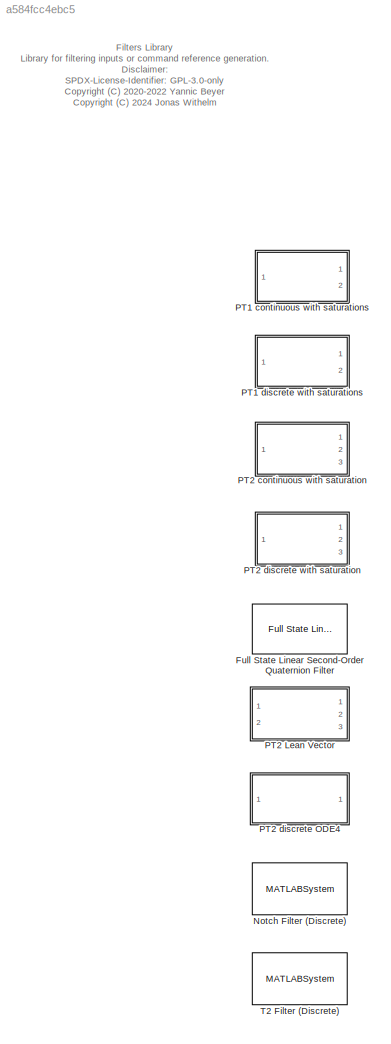
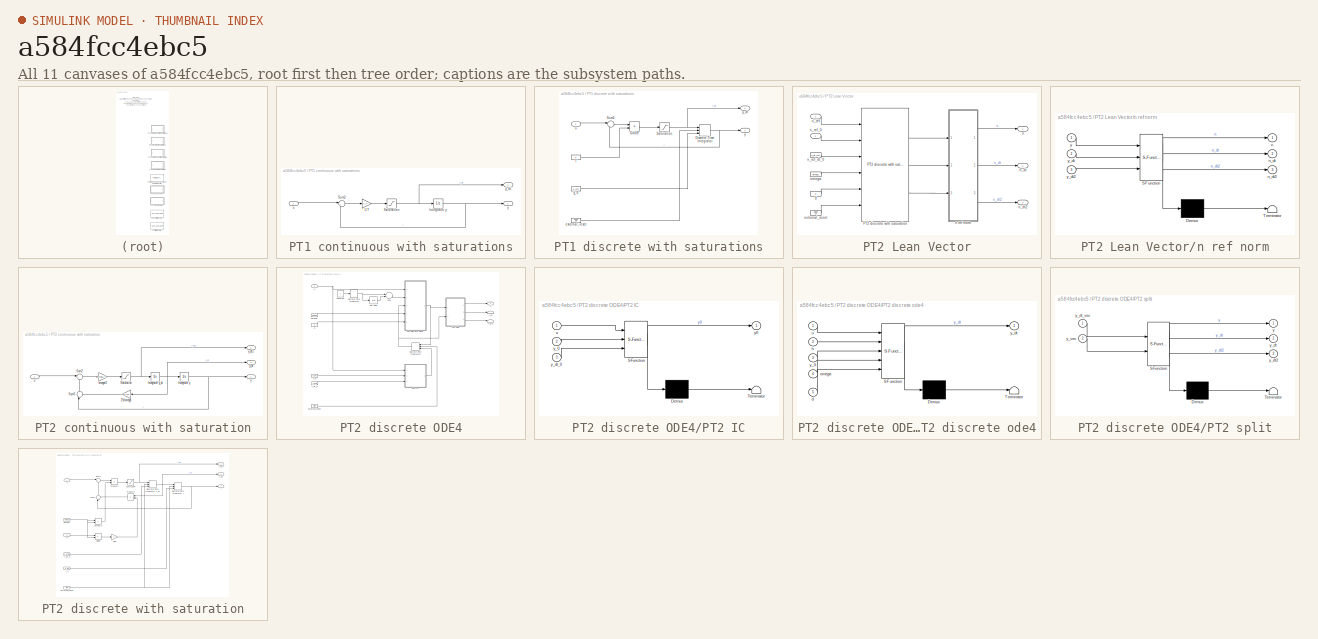
[diagram: thumbnail index - all 11 canvases of the model, root first then tree order]
MODEL slx_a584fcc4ebc5
KIND library
CONFIG AbsTol = auto
CONFIG EnableMultiTasking = off
CONFIG FixedStep = auto
CONFIG MaxStep = auto
CONFIG MinStep = auto
CONFIG RelTol = 1e-3
CONFIG SampleTimeConstraint = Unconstrained
CONFIG Solver = VariableStepAuto
CONFIG SolverName = VariableStepAuto
CONFIG StartTime = 0.0
CONFIG StopTime = 10.0
BLOCK [Reference] Full State Linear Second-Order Quaternion Filter  REF=quatAttitudeController_lib/Full State Linear Second-Order Quaternion Filter
  Ports = [1, 1]
  SourceBlock = quatAttitudeController_lib/Full State Linear Second-Order Quaternion Filter
  SourceProductName = LADAC
BLOCK [MATLABSystem] Notch Filter (Discrete)
  A0_dB = 40
  MaskDisplay = disp('NotchFilter');\nport_label('input',1,'u');\nport_label('output',1,'y');
  MaskType = NotchFilter
  Ports = [1, 1]
  SimulateUsing = Code generation
  System = NotchFilter
  Ts = -1
  omega_0 = 2*pi*80
  omega_c = 2*pi*40
BLOCK [SubSystem] PT1 continuous with saturations
  Ports = [1, 2]
  RequestExecContextInheritance = off
BLOCK [Gain] PT1 continuous with saturations/1//T
  Gain = 1./T
  OutDataTypeStr = Inherit: Inherit via internal rule
  ParamDataTypeStr = Inherit: Inherit via internal rule
  SaturateOnIntegerOverflow = off
BLOCK [Integrator] PT1 continuous with saturations/Integrator y
  InitialCondition = x_init
  LimitOutput = on
  LowerSaturationLimit = x_min
  Ports = [1, 1]
  UpperSaturationLimit = x_max
BLOCK [Saturate] PT1 continuous with saturations/Saturation
  InputPortMap = u0
  LowerLimit = x_dt_min
  Ports = [1, 1]
  UpperLimit = x_dt_max
BLOCK [Sum] PT1 continuous with saturations/Sum2
  IconShape = round
  InputSameDT = off
  Inputs = |+-
  OutDataTypeStr = Inherit: Inherit via internal rule
  Ports = [2, 1]
  SaturateOnIntegerOverflow = off
BLOCK [Inport] PT1 continuous with saturations/u
  IconDisplay = Port number
BLOCK [Outport] PT1 continuous with saturations/y
  IconDisplay = Port number
BLOCK [Outport] PT1 continuous with saturations/y_dt
  IconDisplay = Port number
  Port = 2
BLOCK [SubSystem] PT1 discrete with saturations
  Ports = [1, 2]
  RequestExecContextInheritance = off
BLOCK [DiscreteIntegrator] PT1 discrete with saturations/Discrete-Time Integrator
  ExternalReset = rising
  ICPrevOutput = DiscIntNeverNeededParam
  ICPrevScaledInput = DiscIntNeverNeededParam
  InitialCondition = x_init
  InitialConditionSetting = Auto
  InitialConditionSource = external
  LimitOutput = on
  LowerSaturationLimit = x_min
  Ports = [3, 1]
  SampleTime = -1
  UpperSaturationLimit = x_max
BLOCK [Product] PT1 discrete with saturations/Divide
  InputSameDT = off
  Inputs = */
  OutDataTypeStr = Inherit: Inherit via internal rule
  Ports = [2, 1]
  RndMeth = Floor
  SaturateOnIntegerOverflow = off
BLOCK [Saturate] PT1 discrete with saturations/Saturation
  InputPortMap = u0
  LowerLimit = x_dt_min
  Ports = [1, 1]
  UpperLimit = x_dt_max
BLOCK [Sum] PT1 discrete with saturations/Sum2
  IconShape = round
  InputSameDT = off
  Inputs = |+-
  OutDataTypeStr = Inherit: Inherit via internal rule
  Ports = [2, 1]
  SaturateOnIntegerOverflow = off
BLOCK [Constant] PT1 discrete with saturations/T
  Value = T
BLOCK [Ground] PT1 discrete with saturations/external_reset
BLOCK [Inport] PT1 discrete with saturations/u
  IconDisplay = Port number
BLOCK [Outport] PT1 discrete with saturations/y
  IconDisplay = Port number
BLOCK [Constant] PT1 discrete with saturations/y_0
  Value = x_init
BLOCK [Outport] PT1 discrete with saturations/y_dt
  IconDisplay = Port number
  Port = 2
BLOCK [SubSystem] PT2 Lean Vector
  Ports = [2, 3]
  RequestExecContextInheritance = off
BLOCK [Reference] PT2 Lean Vector/PT2 discrete with saturation  REF=$bdroot/PT2 discrete with saturation
  Ports = [6, 3]
  SourceBlock = $bdroot/PT2 discrete with saturation
  SourceType = PT2 discrete with saturation
BLOCK [Constant] PT2 Lean Vector/d
  Value = d
BLOCK [Ground] PT2 Lean Vector/external_reset
BLOCK [Outport] PT2 Lean Vector/n
  IconDisplay = Port number
  PortDimensions = 3
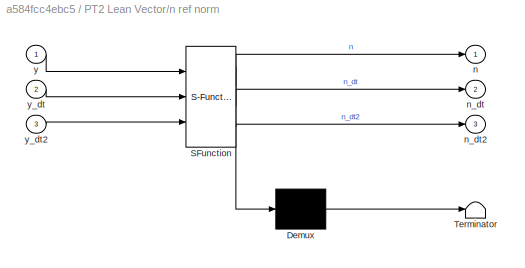
BLOCK [SubSystem] PT2 Lean Vector/n ref norm
  ErrorFcn = Stateflow.Translate.translate
  PermitHierarchicalResolution = ExplicitOnly
  Ports = [3, 3]
  RequestExecContextInheritance = off
  SFBlockType = MATLAB Function
  TreatAsAtomicUnit = on
BLOCK [Demux] PT2 Lean Vector/n ref norm/ Demux 
  Outputs = 1
  Ports = [1, 1]
BLOCK [S-Function] PT2 Lean Vector/n ref norm/ SFunction 
  EnableBusSupport = off
  FunctionName = sf_sfun
  PortCounts = [3 4]
  Ports = [3, 4]
  SFcnIsStateOwnerBlock = off
  SFunctionDeploymentMode = off
  Tag = Stateflow S-Function filters_lib 2
BLOCK [Terminator] PT2 Lean Vector/n ref norm/ Terminator 
BLOCK [Outport] PT2 Lean Vector/n ref norm/n
  IconDisplay = Port number
BLOCK [Outport] PT2 Lean Vector/n ref norm/n_dt
  IconDisplay = Port number
  Port = 2
BLOCK [Outport] PT2 Lean Vector/n ref norm/n_dt2
  IconDisplay = Port number
  Port = 3
BLOCK [Inport] PT2 Lean Vector/n ref norm/y
  IconDisplay = Port number
BLOCK [Inport] PT2 Lean Vector/n ref norm/y_dt
  IconDisplay = Port number
  Port = 2
BLOCK [Inport] PT2 Lean Vector/n ref norm/y_dt2
  IconDisplay = Port number
  Port = 3
BLOCK [Outport] PT2 Lean Vector/n_dt
  IconDisplay = Port number
  Port = 2
  PortDimensions = 3
BLOCK [Outport] PT2 Lean Vector/n_dt2
  IconDisplay = Port number
  Port = 3
  PortDimensions = 3
BLOCK [Inport] PT2 Lean Vector/n_ref
  IconDisplay = Port number
  PortDimensions = 3
BLOCK [Inport] PT2 Lean Vector/n_ref_0
  IconDisplay = Port number
  Port = 2
  PortDimensions = 3
BLOCK [Constant] PT2 Lean Vector/n_ref_dt_0
  Value = x_dt_init
BLOCK [Constant] PT2 Lean Vector/omega
  Value = omega
BLOCK [SubSystem] PT2 continuous with saturation
  Ports = [1, 3]
  RequestExecContextInheritance = off
BLOCK [Gain] PT2 continuous with saturation/2*d//omega
  Gain = 2*d./omega
  OutDataTypeStr = Inherit: Inherit via internal rule
  ParamDataTypeStr = Inherit: Inherit via internal rule
  SaturateOnIntegerOverflow = off
BLOCK [Integrator] PT2 continuous with saturation/Integrator y
  InitialCondition = x_init
  LimitOutput = on
  LowerSaturationLimit = x_min
  Ports = [1, 1]
  UpperSaturationLimit = x_max
BLOCK [Integrator] PT2 continuous with saturation/Integrator y_dt
  InitialCondition = x_dt_init
  LimitOutput = on
  LowerSaturationLimit = x_dt_min
  Ports = [1, 1]
  UpperSaturationLimit = x_dt_max
BLOCK [Saturate] PT2 continuous with saturation/Saturation
  InputPortMap = u0
  LowerLimit = x_dt2_min
  Ports = [1, 1]
  UpperLimit = x_dt2_max
BLOCK [Sum] PT2 continuous with saturation/Sum2
  IconShape = round
  InputSameDT = off
  Inputs = |+-
  OutDataTypeStr = Inherit: Inherit via internal rule
  Ports = [2, 1]
  SaturateOnIntegerOverflow = off
BLOCK [Sum] PT2 continuous with saturation/Sum3
  IconShape = round
  InputSameDT = off
  Inputs = |++
  OutDataTypeStr = Inherit: Inherit via internal rule
  Ports = [2, 1]
  SaturateOnIntegerOverflow = off
BLOCK [Gain] PT2 continuous with saturation/omega^2
  Gain = omega.^2
  OutDataTypeStr = Inherit: Inherit via internal rule
  ParamDataTypeStr = Inherit: Inherit via internal rule
  SaturateOnIntegerOverflow = off
BLOCK [Inport] PT2 continuous with saturation/u
  IconDisplay = Port number
BLOCK [Outport] PT2 continuous with saturation/y
  IconDisplay = Port number
BLOCK [Outport] PT2 continuous with saturation/y_dt
  IconDisplay = Port number
  Port = 2
BLOCK [Outport] PT2 continuous with saturation/y_dt2
  IconDisplay = Port number
  Port = 3
BLOCK [SubSystem] PT2 discrete ODE4
  Ports = [1, 1]
  RequestExecContextInheritance = off
BLOCK [Sum] PT2 discrete ODE4/Add1
  InputSameDT = off
  Inputs = +-
  OutDataTypeStr = Inherit: Inherit via internal rule
  Ports = [2, 1]
  SaturateOnIntegerOverflow = off
BLOCK [Constant] PT2 discrete ODE4/Constant
BLOCK [DiscreteIntegrator] PT2 discrete ODE4/Discrete-Time Integrator
  ICPrevOutput = DiscIntNeverNeededParam
  ICPrevScaledInput = DiscIntNeverNeededParam
  InitialConditionSetting = Auto
  Ports = [1, 1]
  SampleTime = -1
BLOCK [DiscreteIntegrator] PT2 discrete ODE4/Discrete-Time Integrator1
  ExternalReset = rising
  ICPrevOutput = DiscIntNeverNeededParam
  ICPrevScaledInput = DiscIntNeverNeededParam
  InitialConditionSetting = Auto
  InitialConditionSource = external
  Ports = [3, 1]
  SampleTime = -1
BLOCK [SubSystem] PT2 discrete ODE4/PT2 IC
  ErrorFcn = Stateflow.Translate.translate
  PermitHierarchicalResolution = ExplicitOnly
  Ports = [3, 1]
  RequestExecContextInheritance = off
  SFBlockType = MATLAB Function
  TreatAsAtomicUnit = on
BLOCK [Demux] PT2 discrete ODE4/PT2 IC/ Demux 
  Outputs = 1
  Ports = [1, 1]
BLOCK [S-Function] PT2 discrete ODE4/PT2 IC/ SFunction 
  EnableBusSupport = off
  FunctionName = sf_sfun
  PortCounts = [3 2]
  Ports = [3, 2]
  SFcnIsStateOwnerBlock = off
  SFunctionDeploymentMode = off
  Tag = Stateflow S-Function filters_lib 1
BLOCK [Terminator] PT2 discrete ODE4/PT2 IC/ Terminator 
BLOCK [Inport] PT2 discrete ODE4/PT2 IC/u
  IconDisplay = Port number
BLOCK [Outport] PT2 discrete ODE4/PT2 IC/y0
  IconDisplay = Port number
BLOCK [Inport] PT2 discrete ODE4/PT2 IC/y_0
  IconDisplay = Port number
  Port = 2
BLOCK [Inport] PT2 discrete ODE4/PT2 IC/y_dt_0
  IconDisplay = Port number
  Port = 3
BLOCK [SubSystem] PT2 discrete ODE4/PT2 discrete ode4
  ErrorFcn = Stateflow.Translate.translate
  PermitHierarchicalResolution = ExplicitOnly
  Ports = [5, 1]
  RequestExecContextInheritance = off
  SFBlockType = MATLAB Function
  TreatAsAtomicUnit = on
BLOCK [Demux] PT2 discrete ODE4/PT2 discrete ode4/ Demux 
  Outputs = 1
  Ports = [1, 1]
BLOCK [S-Function] PT2 discrete ODE4/PT2 discrete ode4/ SFunction 
  EnableBusSupport = off
  FunctionName = sf_sfun
  PortCounts = [5 2]
  Ports = [5, 2]
  SFcnIsStateOwnerBlock = off
  SFunctionDeploymentMode = off
  Tag = Stateflow S-Function filters_lib 22
BLOCK [Terminator] PT2 discrete ODE4/PT2 discrete ode4/ Terminator 
BLOCK [Inport] PT2 discrete ODE4/PT2 discrete ode4/d
  IconDisplay = Port number
  Port = 5
BLOCK [Inport] PT2 discrete ODE4/PT2 discrete ode4/h
  IconDisplay = Port number
  Port = 2
BLOCK [Inport] PT2 discrete ODE4/PT2 discrete ode4/omega
  IconDisplay = Port number
  Port = 4
BLOCK [Inport] PT2 discrete ODE4/PT2 discrete ode4/u
  IconDisplay = Port number
BLOCK [Inport] PT2 discrete ODE4/PT2 discrete ode4/y_0
  IconDisplay = Port number
  Port = 3
BLOCK [Outport] PT2 discrete ODE4/PT2 discrete ode4/y_dt
  IconDisplay = Port number
BLOCK [SubSystem] PT2 discrete ODE4/PT2 split
  ErrorFcn = Stateflow.Translate.translate
  PermitHierarchicalResolution = ExplicitOnly
  Ports = [2, 3]
  RequestExecContextInheritance = off
  SFBlockType = MATLAB Function
  TreatAsAtomicUnit = on
BLOCK [Demux] PT2 discrete ODE4/PT2 split/ Demux 
  Outputs = 1
  Ports = [1, 1]
BLOCK [S-Function] PT2 discrete ODE4/PT2 split/ SFunction 
  EnableBusSupport = off
  FunctionName = sf_sfun
  PortCounts = [2 4]
  Ports = [2, 4]
  SFcnIsStateOwnerBlock = off
  SFunctionDeploymentMode = off
  Tag = Stateflow S-Function filters_lib 25
BLOCK [Terminator] PT2 discrete ODE4/PT2 split/ Terminator 
BLOCK [Outport] PT2 discrete ODE4/PT2 split/y
  IconDisplay = Port number
BLOCK [Outport] PT2 discrete ODE4/PT2 split/y_dt
  IconDisplay = Port number
  Port = 2
BLOCK [Outport] PT2 discrete ODE4/PT2 split/y_dt2
  IconDisplay = Port number
  Port = 3
BLOCK [Inport] PT2 discrete ODE4/PT2 split/y_dt_vec
  IconDisplay = Port number
BLOCK [Inport] PT2 discrete ODE4/PT2 split/y_vec
  IconDisplay = Port number
  Port = 2
BLOCK [UnitDelay] PT2 discrete ODE4/Unit Delay
  InputProcessing = Elements as channels (sample based)
  SampleTime = -1
BLOCK [Constant] PT2 discrete ODE4/d
  Value = d
BLOCK [Ground] PT2 discrete ODE4/external_reset
BLOCK [Constant] PT2 discrete ODE4/omega
  Value = omega
BLOCK [Inport] PT2 discrete ODE4/u
  IconDisplay = Port number
BLOCK [Outport] PT2 discrete ODE4/y
  IconDisplay = Port number
BLOCK [Constant] PT2 discrete ODE4/y_0
  Value = x_init
BLOCK [Terminator] PT2 discrete ODE4/y_dt
BLOCK [Terminator] PT2 discrete ODE4/y_dt2
BLOCK [Constant] PT2 discrete ODE4/y_dt_0
  Value = x_dt_init
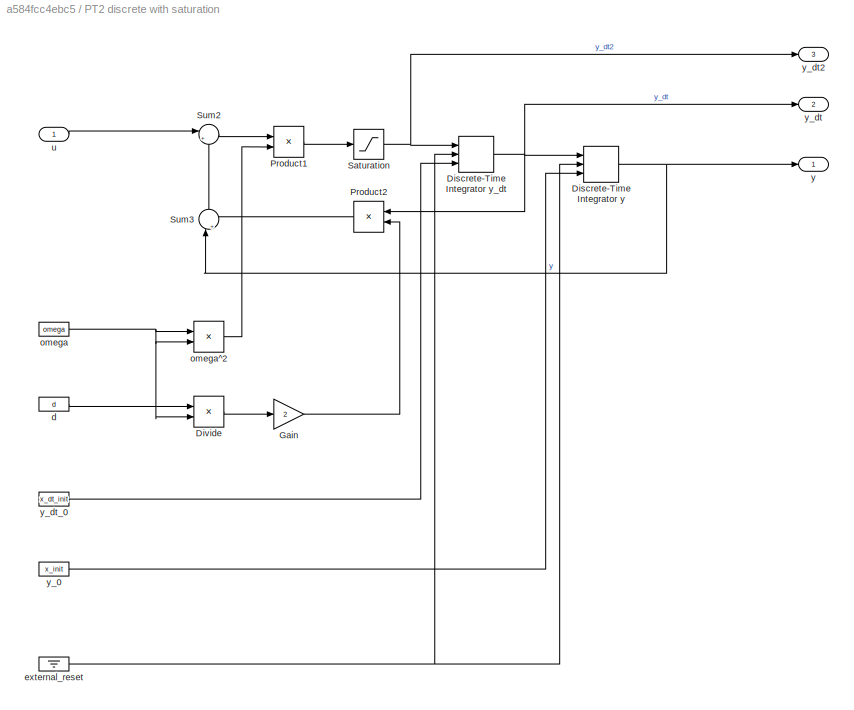
BLOCK [SubSystem] PT2 discrete with saturation
  Ports = [1, 3]
  RequestExecContextInheritance = off
BLOCK [DiscreteIntegrator] PT2 discrete with saturation/Discrete-Time Integrator y
  ExternalReset = rising
  ICPrevOutput = DiscIntNeverNeededParam
  ICPrevScaledInput = DiscIntNeverNeededParam
  InitialCondition = x_init
  InitialConditionSetting = Auto
  InitialConditionSource = external
  LimitOutput = on
  LowerSaturationLimit = x_min
  Ports = [3, 1]
  SampleTime = -1
  UpperSaturationLimit = x_max
BLOCK [DiscreteIntegrator] PT2 discrete with saturation/Discrete-Time Integrator y_dt
  ExternalReset = rising
  ICPrevOutput = DiscIntNeverNeededParam
  ICPrevScaledInput = DiscIntNeverNeededParam
  InitialCondition = x_dt_init
  InitialConditionSetting = Auto
  InitialConditionSource = external
  LimitOutput = on
  LowerSaturationLimit = x_dt_min
  Ports = [3, 1]
  SampleTime = -1
  UpperSaturationLimit = x_dt_max
BLOCK [Product] PT2 discrete with saturation/Divide
  InputSameDT = off
  Inputs = */
  OutDataTypeStr = Inherit: Inherit via internal rule
  Ports = [2, 1]
  RndMeth = Floor
  SaturateOnIntegerOverflow = off
BLOCK [Gain] PT2 discrete with saturation/Gain
  Gain = 2
  OutDataTypeStr = Inherit: Inherit via internal rule
  ParamDataTypeStr = Inherit: Inherit via internal rule
  SaturateOnIntegerOverflow = off
BLOCK [Product] PT2 discrete with saturation/Product1
  InputSameDT = off
  OutDataTypeStr = Inherit: Inherit via internal rule
  Ports = [2, 1]
  RndMeth = Floor
  SaturateOnIntegerOverflow = off
BLOCK [Product] PT2 discrete with saturation/Product2
  InputSameDT = off
  OutDataTypeStr = Inherit: Inherit via internal rule
  Ports = [2, 1]
  RndMeth = Floor
  SaturateOnIntegerOverflow = off
BLOCK [Saturate] PT2 discrete with saturation/Saturation
  InputPortMap = u0
  LowerLimit = x_dt2_min
  Ports = [1, 1]
  UpperLimit = x_dt2_max
BLOCK [Sum] PT2 discrete with saturation/Sum2
  IconShape = round
  InputSameDT = off
  Inputs = |+-
  OutDataTypeStr = Inherit: Inherit via internal rule
  Ports = [2, 1]
  SaturateOnIntegerOverflow = off
BLOCK [Sum] PT2 discrete with saturation/Sum3
  IconShape = round
  InputSameDT = off
  Inputs = |++
  OutDataTypeStr = Inherit: Inherit via internal rule
  Ports = [2, 1]
  SaturateOnIntegerOverflow = off
BLOCK [Constant] PT2 discrete with saturation/d
  Value = d
BLOCK [Ground] PT2 discrete with saturation/external_reset
BLOCK [Constant] PT2 discrete with saturation/omega
  Value = omega
BLOCK [Product] PT2 discrete with saturation/omega^2
  InputSameDT = off
  OutDataTypeStr = Inherit: Inherit via internal rule
  Ports = [2, 1]
  RndMeth = Floor
  SaturateOnIntegerOverflow = off
BLOCK [Inport] PT2 discrete with saturation/u
  IconDisplay = Port number
BLOCK [Outport] PT2 discrete with saturation/y
  IconDisplay = Port number
BLOCK [Constant] PT2 discrete with saturation/y_0
  Value = x_init
BLOCK [Outport] PT2 discrete with saturation/y_dt
  IconDisplay = Port number
  Port = 2
BLOCK [Outport] PT2 discrete with saturation/y_dt2
  IconDisplay = Port number
  Port = 3
BLOCK [Constant] PT2 discrete with saturation/y_dt_0
  Value = x_dt_init
BLOCK [MATLABSystem] T2 Filter (Discrete)
  MaskDisplay = disp('T2Filter');\nport_label('input',1,'u');\nport_label('output',1,'y');
  MaskType = T2Filter
  Ports = [1, 1]
  SimulateUsing = Code generation
  System = T2Filter
  Ts = -1
  d = 0.7
  is_acc = false
  is_vel = false
  omega_0 = 10
ANNOTATION (root): Filters Library Library for filtering inputs or command reference generation. Disclaimer: SPDX-License-Identifier: GPL-3.0-only <copyright redacted>
LINE PT1 continuous with saturations/1//T:1 -> PT1 continuous with saturations/Saturation:1
NET PT1 continuous with saturations/Integrator y:1 -> PT1 continuous with saturations/Sum2:2, PT1 continuous with saturations/y:1
NET PT1 continuous with saturations/Saturation:1 -> PT1 continuous with saturations/Integrator y:1, PT1 continuous with saturations/y_dt:1
LINE PT1 continuous with saturations/Sum2:1 -> PT1 continuous with saturations/1//T:1
LINE PT1 continuous with saturations/u:1 -> PT1 continuous with saturations/Sum2:1
LINE PT2 continuous with saturation/2*d//omega:1 -> PT2 continuous with saturation/Sum3:2
NET PT2 continuous with saturation/Integrator y:1 -> PT2 continuous with saturation/Sum3:1, PT2 continuous with saturation/y:1
NET PT2 continuous with saturation/Integrator y_dt:1 -> PT2 continuous with saturation/2*d//omega:1, PT2 continuous with saturation/Integrator y:1, PT2 continuous with saturation/y_dt:1
NET PT2 continuous with saturation/Saturation:1 -> PT2 continuous with saturation/Integrator y_dt:1, PT2 continuous with saturation/y_dt2:1
LINE PT2 continuous with saturation/Sum2:1 -> PT2 continuous with saturation/omega^2:1
LINE PT2 continuous with saturation/Sum3:1 -> PT2 continuous with saturation/Sum2:2
LINE PT2 continuous with saturation/omega^2:1 -> PT2 continuous with saturation/Saturation:1
LINE PT2 continuous with saturation/u:1 -> PT2 continuous with saturation/Sum2:1
note: NET lines group one-source signal fan-out (src -> all destinations, sorted); 1:1 wires keep LINE
CHART PT2 discrete ODE4/PT2 IC states=1 transitions=1
  STATE_LABEL 'eML_blk_kernel()'
  STATE_LABEL 'SCRIPT:\nfunction y0 = fcn(u, y_0, y_dt_0)\ny0 = zeros([2,size(u)],class(u));\ny0(1,:) = y_dt_0;\ny0(2,:) = y_0;\nend'
CHART PT2 Lean Vector/n ref norm states=1 transitions=1
  STATE_LABEL 'eML_blk_kernel()'
  STATE_LABEL 'SCRIPT:\nfunction [n, n_dt, n_dt2] = fcn(y, y_dt, y_dt2)\n\nnorm_n  = norm(y,2);\nn       = divideFinite( y, norm_n );\n\nn_dt    = leanVectorNormDeriv(y,y_dt);\nn_dt2   = leanVectorNormDeriv2(y,y_dt,y_dt2);\n\nend\n'
CHART PT2 discrete ODE4/PT2 discrete ode4 states=1 transitions=1
  STATE_LABEL 'eML_blk_kernel()'
  STATE_LABEL 'SCRIPT:\nfunction y_dt  = fcn(u, h, y_0, omega, d)\n\ny_dt = zeros([2,size(u)],class(u));\n\n% y = [y_dt_0;y_0];\n\nk1 = f(y_0,u,omega,d);\nk2 = f(y_0+0.5*h*k1,u,omega,d);\nk3 = f(y_0+0.5*h*k2,u,omega,d);\nk4 = f(y_0+h*k3,u,omega,d);\n\ny_dt(:) = 1/6*(k1+2*k2+2*k3+k4);\n% y_dt2(:) = 1/6*(k1(1,:)+2*k2(1,:)+2*k3(1,:)+k4(1,:));\n\nfunction y_vec_dt = f(y_0,u,omega,d)\n    len_u = length(u);\n    y_vec_dt = zeros(2,le...<+267ch>'
CHART PT2 discrete ODE4/PT2 split states=1 transitions=1
  STATE_LABEL 'eML_blk_kernel()'
  STATE_LABEL "SCRIPT:\nfunction [y,y_dt,y_dt2] = fcn(y_dt_vec, y_vec)\ny = y_vec(2,:)';\ny_dt = y_dt_vec(2,:)';\ny_dt2 = y_dt_vec(1,:)';\nend"
